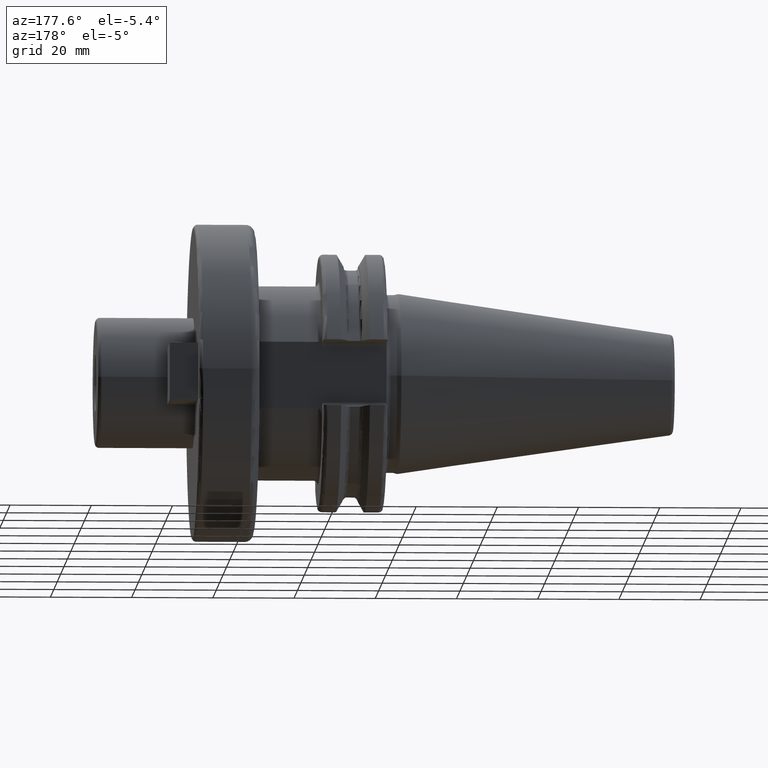
[diagram: clean part render]
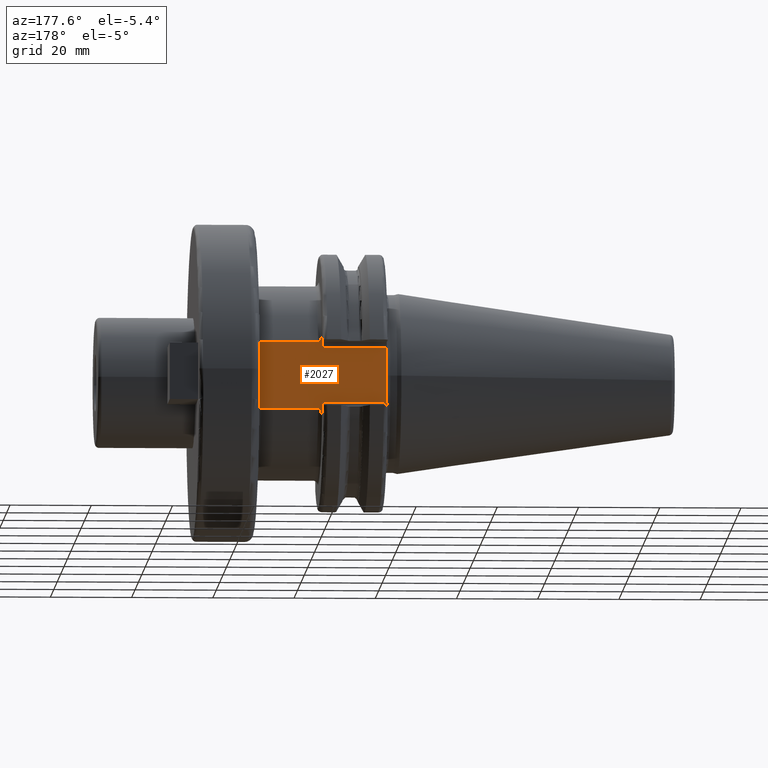
[diagram: same view with one face highlighted and labeled with its STEP entity id]
A machine part, auxiliary view. The second image highlights one B-rep face of the part: STEP entity #2027.
In plain terms, the highlighted planar face has unit normal (0, -1, 0).
Its self-contained STEP definition (entity closure, byte-faithful):
#96=CARTESIAN_POINT('',(3.145714015969E0,2.255E1,0.E0));
#97=CARTESIAN_POINT('',(3.145714015969E0,2.255E1,-1.830251188857E-1));
#98=CARTESIAN_POINT('',(3.147263299438E0,2.255E1,-5.490774984715E-1));
#99=CARTESIAN_POINT('',(3.153915624300E0,2.255E1,-1.098219783342E0));
#100=CARTESIAN_POINT('',(3.163955531798E0,2.255E1,-1.647254187265E0));
#101=CARTESIAN_POINT('',(3.175890292850E0,2.255E1,-2.196155647006E0));
#102=CARTESIAN_POINT('',(3.187756155044E0,2.255E1,-2.744876756971E0));
#103=CARTESIAN_POINT('',(3.197183898560E0,2.255E1,-3.293518646440E0));
#104=CARTESIAN_POINT('',(3.2E0,2.255E1,-3.659354563864E0));
#105=CARTESIAN_POINT('',(3.2E0,2.255E1,-3.842281223440E0));
#122=DIRECTION('',(-1.E0,0.E0,0.E0));
#123=VECTOR('',#122,1.585E1);
#124=CARTESIAN_POINT('',(1.905E1,2.255E1,-6.75E0));
#125=LINE('',#124,#123);
#126=DIRECTION('',(0.E0,0.E0,1.E0));
#127=VECTOR('',#126,4.043400761576E0);
#128=CARTESIAN_POINT('',(1.905E1,2.255E1,-1.079340076158E1));
#129=LINE('',#128,#127);
#130=DIRECTION('',(0.E0,0.E0,-1.E0));
#131=VECTOR('',#130,2.158680152315E1);
#132=CARTESIAN_POINT('',(3.505E1,2.255E1,1.079340076158E1));
#133=LINE('',#132,#131);
#134=DIRECTION('',(0.E0,0.E0,1.E0));
#135=VECTOR('',#134,4.043400761576E0);
#136=CARTESIAN_POINT('',(1.905E1,2.255E1,6.75E0));
#137=LINE('',#136,#135);
#138=DIRECTION('',(-1.E0,0.E0,0.E0));
#139=VECTOR('',#138,1.585E1);
#140=CARTESIAN_POINT('',(1.905E1,2.255E1,6.75E0));
#141=LINE('',#140,#139);
#257=CARTESIAN_POINT('',(1.905E1,2.255E1,-1.079340076158E1));
#258=CARTESIAN_POINT('',(1.905E1,2.255E1,-1.067705568090E1));
#259=CARTESIAN_POINT('',(1.905752014836E1,2.255E1,-1.045668009241E1));
#260=CARTESIAN_POINT('',(1.908341400246E1,2.255E1,-1.016550381252E1));
#261=CARTESIAN_POINT('',(1.911908733651E1,2.255E1,-9.906286326207E0));
#262=CARTESIAN_POINT('',(1.916184350067E1,2.255E1,-9.673339960545E0));
#263=CARTESIAN_POINT('',(1.921035341039E1,2.255E1,-9.461288277651E0));
#264=CARTESIAN_POINT('',(1.926442840116E1,2.255E1,-9.265043399461E0));
#265=CARTESIAN_POINT('',(1.932522244839E1,2.255E1,-9.079034139201E0));
#266=CARTESIAN_POINT('',(1.939500331574E1,2.255E1,-8.898889178238E0));
#267=CARTESIAN_POINT('',(1.947639568342E1,2.255E1,-8.723981283855E0));
#268=CARTESIAN_POINT('',(1.957130002816E1,2.255E1,-8.558688171987E0));
#269=CARTESIAN_POINT('',(1.968093598734E1,2.255E1,-8.412287557385E0));
#270=CARTESIAN_POINT('',(1.979717254647E1,2.255E1,-8.302789816984E0));
#271=CARTESIAN_POINT('',(1.991899903699E1,2.255E1,-8.233026105773E0));
#272=CARTESIAN_POINT('',(2.000552640442E1,2.255E1,-8.215686216014E0));
#273=CARTESIAN_POINT('',(2.005E1,2.255E1,-8.215686216014E0));
#282=CARTESIAN_POINT('',(2.005E1,2.255E1,8.215686216014E0));
#283=CARTESIAN_POINT('',(2.000460591630E1,2.255E1,8.215686216014E0));
#284=CARTESIAN_POINT('',(1.991735029835E1,2.255E1,8.233792594363E0));
#285=CARTESIAN_POINT('',(1.979804028122E1,2.255E1,8.302511093902E0));
#286=CARTESIAN_POINT('',(1.968677886097E1,2.255E1,8.406881016142E0));
#287=CARTESIAN_POINT('',(1.958806349969E1,2.255E1,8.534678103050E0));
#288=CARTESIAN_POINT('',(1.949529052953E1,2.255E1,8.688090740188E0));
#289=CARTESIAN_POINT('',(1.940884929964E1,2.255E1,8.865914490489E0));
#290=CARTESIAN_POINT('',(1.933001996605E1,2.255E1,9.064021419940E0));
#291=CARTESIAN_POINT('',(1.925856454638E1,2.255E1,9.282326362327E0));
#292=CARTESIAN_POINT('',(1.919419155271E1,2.255E1,9.524061559016E0));
#293=CARTESIAN_POINT('',(1.913784770344E1,2.255E1,9.792443905200E0));
#294=CARTESIAN_POINT('',(1.909169934303E1,2.255E1,1.009022805334E1));
#295=CARTESIAN_POINT('',(1.905913306925E1,2.255E1,1.042025777562E1));
#296=CARTESIAN_POINT('',(1.905E1,2.255E1,1.066506725566E1));
#297=CARTESIAN_POINT('',(1.905E1,2.255E1,1.079340076158E1));
#299=DIRECTION('',(1.E0,0.E0,0.E0));
#300=VECTOR('',#299,1.4E1);
#301=CARTESIAN_POINT('',(2.005E1,2.255E1,-8.215686216014E0));
#302=LINE('',#301,#300);
#308=DIRECTION('',(1.E0,0.E0,0.E0));
#309=VECTOR('',#308,1.4E1);
#310=CARTESIAN_POINT('',(2.005E1,2.255E1,8.215686216014E0));
#311=LINE('',#310,#309);
#317=CARTESIAN_POINT('',(3.405E1,2.255E1,-8.215686216014E0));
#318=CARTESIAN_POINT('',(3.409538202450E1,2.255E1,-8.215686216014E0));
#319=CARTESIAN_POINT('',(3.418260974323E1,2.255E1,-8.233783833963E0));
#320=CARTESIAN_POINT('',(3.430186746976E1,2.255E1,-8.302445662116E0));
#321=CARTESIAN_POINT('',(3.441306466818E1,2.255E1,-8.406728195401E0));
#322=CARTESIAN_POINT('',(3.451158756816E1,2.255E1,-8.534172663905E0));
#323=CARTESIAN_POINT('',(3.460449724074E1,2.255E1,-8.687678331631E0));
#324=CARTESIAN_POINT('',(3.469100681339E1,2.255E1,-8.865589998671E0));
#325=CARTESIAN_POINT('',(3.476979945901E1,2.255E1,-9.063529318390E0));
#326=CARTESIAN_POINT('',(3.484126210360E1,2.255E1,-9.281739365283E0));
#327=CARTESIAN_POINT('',(3.490567042325E1,2.255E1,-9.523475114941E0));
#328=CARTESIAN_POINT('',(3.496205493585E1,2.255E1,-9.791900622561E0));
#329=CARTESIAN_POINT('',(3.500824575258E1,2.255E1,-1.008977156189E1));
#330=CARTESIAN_POINT('',(3.504085355663E1,2.255E1,-1.041999211418E1));
#331=CARTESIAN_POINT('',(3.505E1,2.255E1,-1.066497023067E1));
#332=CARTESIAN_POINT('',(3.505E1,2.255E1,-1.079340076158E1));
#339=CARTESIAN_POINT('',(3.505E1,2.255E1,1.079340076158E1));
#340=CARTESIAN_POINT('',(3.505E1,2.255E1,1.067671786025E1));
#341=CARTESIAN_POINT('',(3.504243667317E1,2.255E1,1.045571895214E1));
#342=CARTESIAN_POINT('',(3.501640023313E1,2.255E1,1.016375254164E1));
#343=CARTESIAN_POINT('',(3.498054261295E1,2.255E1,9.903925096364E0));
#344=CARTESIAN_POINT('',(3.493760098288E1,2.255E1,9.670615071958E0));
#345=CARTESIAN_POINT('',(3.488892476757E1,2.255E1,9.458411759651E0));
#346=CARTESIAN_POINT('',(3.483474007393E1,2.255E1,9.262285132058E0));
#347=CARTESIAN_POINT('',(3.477394745715E1,2.255E1,9.076730951058E0));
#348=CARTESIAN_POINT('',(3.470430421035E1,2.255E1,8.897290411130E0));
#349=CARTESIAN_POINT('',(3.462311789308E1,2.255E1,8.723088469882E0));
#350=CARTESIAN_POINT('',(3.452855246423E1,2.255E1,8.558487208340E0));
#351=CARTESIAN_POINT('',(3.441889864919E1,2.255E1,8.412089911001E0));
#352=CARTESIAN_POINT('',(3.430263042043E1,2.255E1,8.302643398525E0));
#353=CARTESIAN_POINT('',(3.418085295775E1,2.255E1,8.232980532055E0));
#354=CARTESIAN_POINT('',(3.409441474794E1,2.255E1,8.215686216014E0));
#355=CARTESIAN_POINT('',(3.405E1,2.255E1,8.215686216014E0));
#677=DIRECTION('',(0.E0,0.E0,-1.E0));
#678=VECTOR('',#677,2.907718776560E0);
#679=CARTESIAN_POINT('',(3.2E0,2.255E1,6.75E0));
#680=LINE('',#679,#678);
#724=DIRECTION('',(0.E0,0.E0,-1.E0));
#725=VECTOR('',#724,2.907718776560E0);
#726=CARTESIAN_POINT('',(3.2E0,2.255E1,-3.842281223440E0));
#727=LINE('',#726,#725);
#1298=CARTESIAN_POINT('',(3.2E0,2.255E1,3.842281223440E0));
#1299=CARTESIAN_POINT('',(3.2E0,2.255E1,3.659346360345E0));
#1300=CARTESIAN_POINT('',(3.197183660273E0,2.255E1,3.293495674472E0));
#1301=CARTESIAN_POINT('',(3.187755287998E0,2.255E1,2.744832710969E0));
#1302=CARTESIAN_POINT('',(3.175889115457E0,2.255E1,2.196103113875E0));
#1303=CARTESIAN_POINT('',(3.163954665645E0,2.255E1,1.647211248391E0));
#1304=CARTESIAN_POINT('',(3.153915287595E0,2.255E1,1.098195325368E0));
#1305=CARTESIAN_POINT('',(3.147263292433E0,2.255E1,5.490722257557E-1));
#1306=CARTESIAN_POINT('',(3.145714015969E0,2.255E1,1.830242653455E-1));
#1307=CARTESIAN_POINT('',(3.145714015969E0,2.255E1,0.E0));
#1674=VERTEX_POINT('',#1298);
#1675=VERTEX_POINT('',#1307);
#1676=VERTEX_POINT('',#105);
#1731=CARTESIAN_POINT('',(3.2E0,2.255E1,6.75E0));
#1732=VERTEX_POINT('',#1731);
#1733=CARTESIAN_POINT('',(3.2E0,2.255E1,-6.75E0));
#1734=VERTEX_POINT('',#1733);
#1824=CARTESIAN_POINT('',(3.505E1,2.255E1,1.079340076158E1));
#1825=CARTESIAN_POINT('',(3.505E1,2.255E1,-1.079340076158E1));
#1826=VERTEX_POINT('',#1824);
#1827=VERTEX_POINT('',#1825);
#1828=CARTESIAN_POINT('',(1.905E1,2.255E1,-1.079340076158E1));
#1829=CARTESIAN_POINT('',(1.905E1,2.255E1,-6.75E0));
#1830=VERTEX_POINT('',#1828);
#1831=VERTEX_POINT('',#1829);
#1832=CARTESIAN_POINT('',(1.905E1,2.255E1,6.75E0));
#1833=CARTESIAN_POINT('',(1.905E1,2.255E1,1.079340076158E1));
#1834=VERTEX_POINT('',#1832);
#1835=VERTEX_POINT('',#1833);
#1836=CARTESIAN_POINT('',(2.005E1,2.255E1,8.215686216014E0));
#1837=CARTESIAN_POINT('',(3.405E1,2.255E1,8.215686216014E0));
#1838=VERTEX_POINT('',#1836);
#1839=VERTEX_POINT('',#1837);
#1840=CARTESIAN_POINT('',(2.005E1,2.255E1,-8.215686216014E0));
#1841=CARTESIAN_POINT('',(3.405E1,2.255E1,-8.215686216014E0));
#1842=VERTEX_POINT('',#1840);
#1843=VERTEX_POINT('',#1841);
#1991=CARTESIAN_POINT('',(1.905E1,2.255E1,8.1E0));
#1992=DIRECTION('',(0.E0,-1.E0,0.E0));
#1993=DIRECTION('',(0.E0,0.E0,-1.E0));
#1994=AXIS2_PLACEMENT_3D('',#1991,#1992,#1993);
#1995=PLANE('',#1994);
#1997=ORIENTED_EDGE('',*,*,#1996,.F.);
#1999=ORIENTED_EDGE('',*,*,#1998,.F.);
#2001=ORIENTED_EDGE('',*,*,#2000,.T.);
#2003=ORIENTED_EDGE('',*,*,#2002,.T.);
#2005=ORIENTED_EDGE('',*,*,#2004,.T.);
#2007=ORIENTED_EDGE('',*,*,#2006,.F.);
#2009=ORIENTED_EDGE('',*,*,#2008,.T.);
#2011=ORIENTED_EDGE('',*,*,#2010,.F.);
#2013=ORIENTED_EDGE('',*,*,#2012,.T.);
#2015=ORIENTED_EDGE('',*,*,#2014,.F.);
#2017=ORIENTED_EDGE('',*,*,#2016,.T.);
#2019=ORIENTED_EDGE('',*,*,#2018,.T.);
#2021=ORIENTED_EDGE('',*,*,#2020,.T.);
#2022=ORIENTED_EDGE('',*,*,#1979,.T.);
#2024=ORIENTED_EDGE('',*,*,#2023,.T.);
#2025=EDGE_LOOP('',(#1997,#1999,#2001,#2003,#2005,#2007,#2009,#2011,#2013,#2015,
#2017,#2019,#2021,#2022,#2024));
#2026=FACE_OUTER_BOUND('',#2025,.F.);
#2027=ADVANCED_FACE('',(#2026),#1995,.F.);
#106=B_SPLINE_CURVE_WITH_KNOTS('',3,(#96,#97,#98,#99,#100,#101,#102,#103,#104,
#105),.UNSPECIFIED.,.F.,.F.,(4,1,1,1,1,1,1,4),(0.E0,1.428571428571E-1,
2.857142857143E-1,4.285714285714E-1,5.714285714286E-1,7.142857142857E-1,
8.571428571429E-1,1.E0),.UNSPECIFIED.);
#274=B_SPLINE_CURVE_WITH_KNOTS('',3,(#257,#258,#259,#260,#261,#262,#263,#264,
#265,#266,#267,#268,#269,#270,#271,#272,#273),.UNSPECIFIED.,.F.,.F.,(4,1,1,1,1,
1,1,1,1,1,1,1,1,1,4),(0.E0,7.142857142857E-2,1.428571428571E-1,
2.142857142857E-1,2.857142857143E-1,3.571428571429E-1,4.285714285714E-1,5.E-1,
5.714285714286E-1,6.428571428571E-1,7.142857142857E-1,7.857142857143E-1,
8.571428571429E-1,9.285714285714E-1,1.E0),.UNSPECIFIED.);
#298=B_SPLINE_CURVE_WITH_KNOTS('',3,(#282,#283,#284,#285,#286,#287,#288,#289,
#290,#291,#292,#293,#294,#295,#296,#297),.UNSPECIFIED.,.F.,.F.,(4,1,1,1,1,1,1,1,
1,1,1,1,1,4),(0.E0,7.692307692308E-2,1.538461538462E-1,2.307692307692E-1,
3.076923076923E-1,3.846153846154E-1,4.615384615385E-1,5.384615384615E-1,
6.153846153846E-1,6.923076923077E-1,7.692307692308E-1,8.461538461538E-1,
9.230769230769E-1,1.E0),.UNSPECIFIED.);
#333=B_SPLINE_CURVE_WITH_KNOTS('',3,(#317,#318,#319,#320,#321,#322,#323,#324,
#325,#326,#327,#328,#329,#330,#331,#332),.UNSPECIFIED.,.F.,.F.,(4,1,1,1,1,1,1,1,
1,1,1,1,1,4),(0.E0,7.692307692308E-2,1.538461538462E-1,2.307692307692E-1,
3.076923076923E-1,3.846153846154E-1,4.615384615385E-1,5.384615384615E-1,
6.153846153846E-1,6.923076923077E-1,7.692307692308E-1,8.461538461538E-1,
9.230769230769E-1,1.E0),.UNSPECIFIED.);
#356=B_SPLINE_CURVE_WITH_KNOTS('',3,(#339,#340,#341,#342,#343,#344,#345,#346,
#347,#348,#349,#350,#351,#352,#353,#354,#355),.UNSPECIFIED.,.F.,.F.,(4,1,1,1,1,
1,1,1,1,1,1,1,1,1,4),(0.E0,7.142857142857E-2,1.428571428571E-1,
2.142857142857E-1,2.857142857143E-1,3.571428571429E-1,4.285714285714E-1,5.E-1,
5.714285714286E-1,6.428571428571E-1,7.142857142857E-1,7.857142857143E-1,
8.571428571429E-1,9.285714285714E-1,1.E0),.UNSPECIFIED.);
#1308=B_SPLINE_CURVE_WITH_KNOTS('',3,(#1298,#1299,#1300,#1301,#1302,#1303,#1304,
#1305,#1306,#1307),.UNSPECIFIED.,.F.,.F.,(4,1,1,1,1,1,1,4),(0.E0,
1.428571428571E-1,2.857142857143E-1,4.285714285714E-1,5.714285714286E-1,
7.142857142857E-1,8.571428571429E-1,1.E0),.UNSPECIFIED.);
#1979=EDGE_CURVE('',#1675,#1676,#106,.T.);
#1996=EDGE_CURVE('',#1831,#1734,#125,.T.);
#1998=EDGE_CURVE('',#1830,#1831,#129,.T.);
#2000=EDGE_CURVE('',#1830,#1842,#274,.T.);
#2002=EDGE_CURVE('',#1842,#1843,#302,.T.);
#2004=EDGE_CURVE('',#1843,#1827,#333,.T.);
#2006=EDGE_CURVE('',#1826,#1827,#133,.T.);
#2008=EDGE_CURVE('',#1826,#1839,#356,.T.);
#2010=EDGE_CURVE('',#1838,#1839,#311,.T.);
#2012=EDGE_CURVE('',#1838,#1835,#298,.T.);
#2014=EDGE_CURVE('',#1834,#1835,#137,.T.);
#2016=EDGE_CURVE('',#1834,#1732,#141,.T.);
#2018=EDGE_CURVE('',#1732,#1674,#680,.T.);
#2020=EDGE_CURVE('',#1674,#1675,#1308,.T.);
#2023=EDGE_CURVE('',#1676,#1734,#727,.T.);